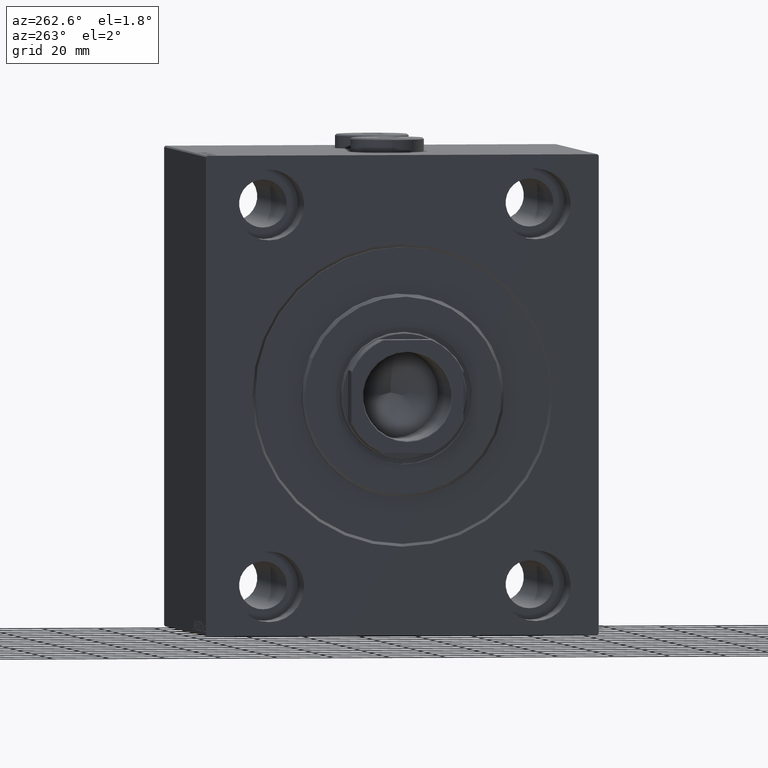
[diagram: clean part render]
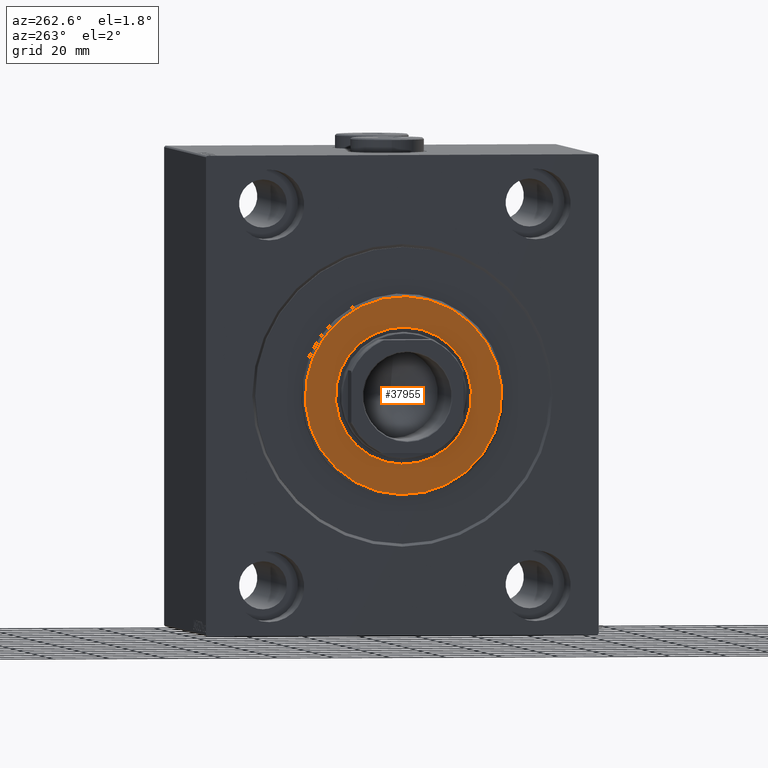
[diagram: same view with one face highlighted and labeled with its STEP entity id]
A machine part, auxiliary view. The second image highlights one B-rep face of the part: STEP entity #37955.
In plain terms, the highlighted planar face has unit normal (-1, 0, 0).
Its self-contained STEP definition (entity closure, byte-faithful):
#490 = CIRCLE ( 'NONE', #13599, 24.25000000000000000 ) ;
#954 = DIRECTION ( 'NONE',  ( -1.000000000000000000, 0.000000000000000000, -0.000000000000000000 ) ) ;
#3621 = ORIENTED_EDGE ( 'NONE', *, *, #40723, .T. ) ;
#4751 = VERTEX_POINT ( 'NONE', #23932 ) ;
#4776 = CARTESIAN_POINT ( 'NONE',  ( 3.000000000000000000, 0.000000000000000000, 0.000000000000000000 ) ) ;
#5001 = VERTEX_POINT ( 'NONE', #41443 ) ;
#5457 = DIRECTION ( 'NONE',  ( 1.000000000000000000, -0.000000000000000000, 0.000000000000000000 ) ) ;
#5750 = CARTESIAN_POINT ( 'NONE',  ( 3.000000000000000000, 2.969768487932331287E-15, -24.25000000000000000 ) ) ;
#10179 = CARTESIAN_POINT ( 'NONE',  ( 3.000000000000000000, 0.000000000000000000, 0.000000000000000000 ) ) ;
#10708 = EDGE_CURVE ( 'NONE', #5001, #14088, #34143, .T. ) ;
#11289 = ORIENTED_EDGE ( 'NONE', *, *, #10708, .T. ) ;
#11525 = AXIS2_PLACEMENT_3D ( 'NONE', #16646, #5457, #33290 ) ;
#13344 = CIRCLE ( 'NONE', #38148, 24.25000000000000000 ) ;
#13599 = AXIS2_PLACEMENT_3D ( 'NONE', #10179, #954, #28584 ) ;
#14088 = VERTEX_POINT ( 'NONE', #32119 ) ;
#14602 = DIRECTION ( 'NONE',  ( 0.000000000000000000, 0.000000000000000000, -1.000000000000000000 ) ) ;
#15517 = ORIENTED_EDGE ( 'NONE', *, *, #28648, .T. ) ;
#15930 = AXIS2_PLACEMENT_3D ( 'NONE', #4776, #35356, #18468 ) ;
#15961 = EDGE_LOOP ( 'NONE', ( #11289, #29380 ) ) ;
#16596 = CIRCLE ( 'NONE', #11525, 35.00000000000001421 ) ;
#16646 = CARTESIAN_POINT ( 'NONE',  ( 3.000000000000000000, 0.000000000000000000, 0.000000000000000000 ) ) ;
#18020 = DIRECTION ( 'NONE',  ( -1.000000000000000000, 0.000000000000000000, -0.000000000000000000 ) ) ;
#18468 = DIRECTION ( 'NONE',  ( 0.000000000000000000, 0.000000000000000000, -1.000000000000000000 ) ) ;
#18680 = FACE_BOUND ( 'NONE', #25723, .T. ) ;
#19110 = PLANE ( 'NONE',  #30411 ) ;
#21444 = CARTESIAN_POINT ( 'NONE',  ( 3.000000000000000000, 0.000000000000000000, 0.000000000000000000 ) ) ;
#21883 = CARTESIAN_POINT ( 'NONE',  ( 3.000000000000000000, 0.000000000000000000, 0.000000000000000000 ) ) ;
#23932 = CARTESIAN_POINT ( 'NONE',  ( 3.000000000000000000, 0.000000000000000000, 24.25000000000000000 ) ) ;
#25723 = EDGE_LOOP ( 'NONE', ( #3621, #15517 ) ) ;
#28584 = DIRECTION ( 'NONE',  ( 0.000000000000000000, 0.000000000000000000, -1.000000000000000000 ) ) ;
#28648 = EDGE_CURVE ( 'NONE', #42362, #4751, #13344, .T. ) ;
#28732 = FACE_OUTER_BOUND ( 'NONE', #15961, .T. ) ;
#29380 = ORIENTED_EDGE ( 'NONE', *, *, #39494, .T. ) ;
#30411 = AXIS2_PLACEMENT_3D ( 'NONE', #21883, #43083, #35801 ) ;
#32119 = CARTESIAN_POINT ( 'NONE',  ( 3.000000000000000000, 4.347496136973104859E-15, -35.00000000000001421 ) ) ;
#33290 = DIRECTION ( 'NONE',  ( 0.000000000000000000, 0.000000000000000000, -1.000000000000000000 ) ) ;
#34143 = CIRCLE ( 'NONE', #15930, 35.00000000000001421 ) ;
#35356 = DIRECTION ( 'NONE',  ( 1.000000000000000000, -0.000000000000000000, 0.000000000000000000 ) ) ;
#35801 = DIRECTION ( 'NONE',  ( 0.000000000000000000, 0.000000000000000000, -1.000000000000000000 ) ) ;
#37955 = ADVANCED_FACE ( 'NONE', ( #28732, #18680 ), #19110, .T. ) ;
#38148 = AXIS2_PLACEMENT_3D ( 'NONE', #21444, #18020, #14602 ) ;
#39494 = EDGE_CURVE ( 'NONE', #14088, #5001, #16596, .T. ) ;
#40723 = EDGE_CURVE ( 'NONE', #4751, #42362, #490, .T. ) ;
#41443 = CARTESIAN_POINT ( 'NONE',  ( 3.000000000000000000, 0.000000000000000000, 35.00000000000001421 ) ) ;
#42362 = VERTEX_POINT ( 'NONE', #5750 ) ;
#43083 = DIRECTION ( 'NONE',  ( 1.000000000000000000, -0.000000000000000000, 0.000000000000000000 ) ) ;